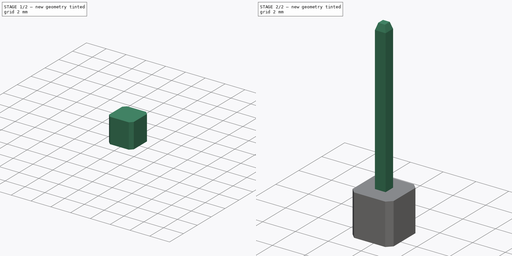
[diagram: build sequence overview — one tinted view per stage of 2, left to right]
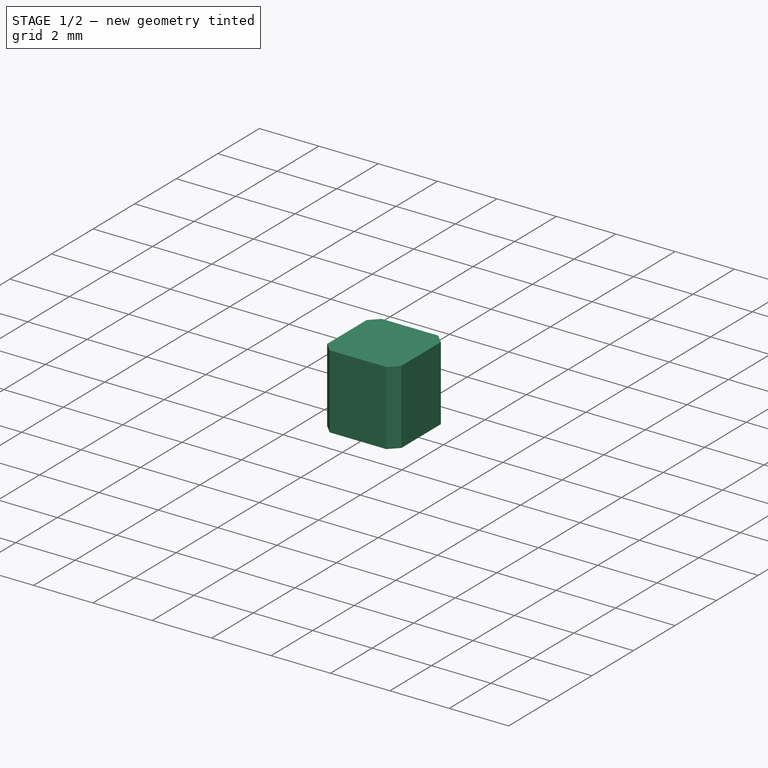
[diagram: stage 1 of 2 — iso view after this stage's code; geometry added in this stage tinted green]
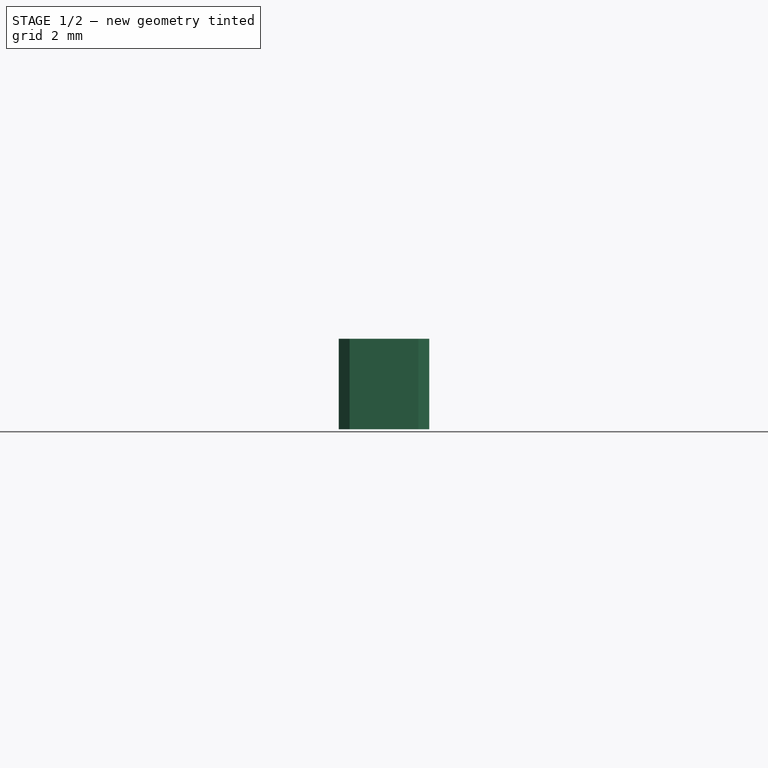
[diagram: stage 1 of 2 — front view after this stage's code; geometry added in this stage tinted green]
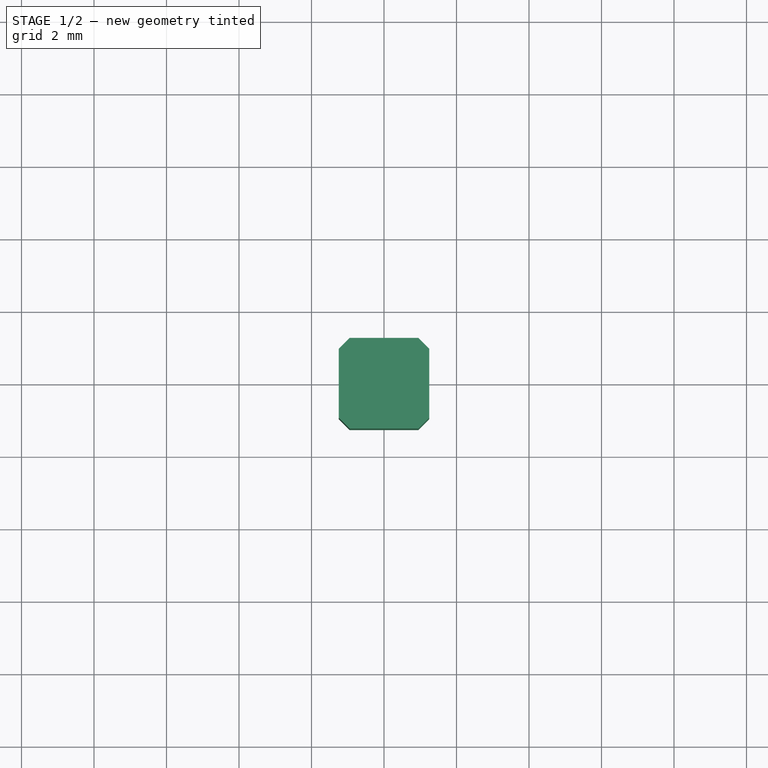
[diagram: stage 1 of 2 — top view after this stage's code; geometry added in this stage tinted green]
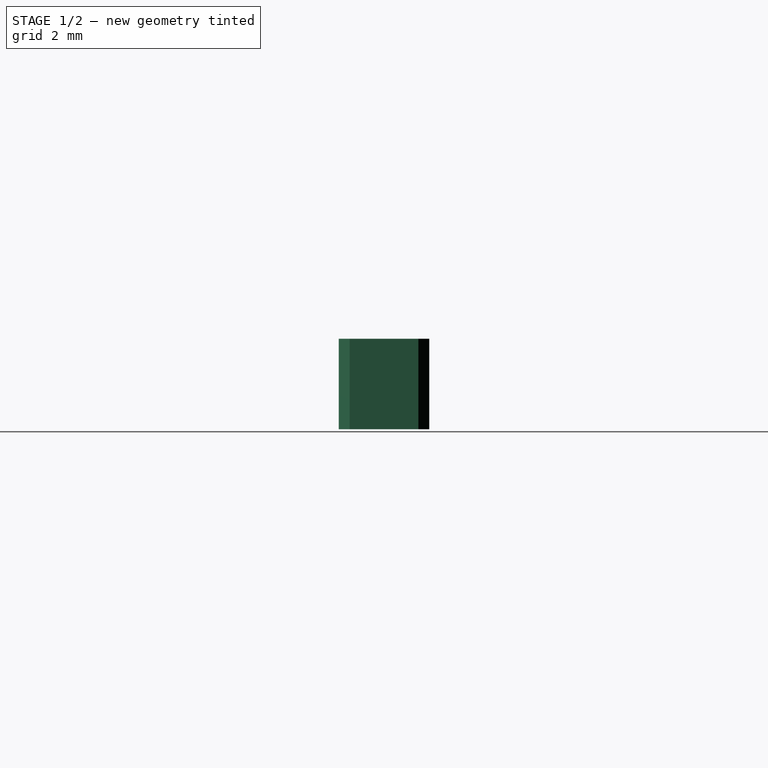
[diagram: stage 1 of 2 — right view after this stage's code; geometry added in this stage tinted green]
FCSTD DOCUMENT  (FreeCAD 0.21R33668 +26 (Git))
Label: PTH_Male_Header_Pin_01x01
License: All rights reserved
LicenseURL: http://en.wikipedia.org/wiki/All_rights_reserved
objects: Sketcher::SketchObject×2, PartDesign::Pad×2, PartDesign::Chamfer×2, PartDesign::Body×2
note: 12 computed .brp shape members not serialized (recipe doc carries the construction recipe); baked Part::Feature solids carry a one-line shape summary decoded from their .brp

FEATURE [PartDesign::Body] Body  label="Pin"
  Group = -> [Sketch,Pad,Chamfer]
  Origin = -> Origin
  Tip = -> Chamfer
FEATURE [Sketcher::SketchObject] Sketch001
  FullyConstrained = true
  MapMode = 5
  Support = -> [XY_Plane001]
  sketch-geometry (5):
    g0: LineSegment StartX=1.25 StartY=-1.25 StartZ=0 EndX=1.25 EndY=1.25 EndZ=0
    g1: LineSegment StartX=1.25 StartY=1.25 StartZ=0 EndX=-1.25 EndY=1.25 EndZ=0
    g2: LineSegment StartX=-1.25 StartY=1.25 StartZ=0 EndX=-1.25 EndY=-1.25 EndZ=0
    g3: LineSegment StartX=-1.25 StartY=-1.25 StartZ=0 EndX=1.25 EndY=-1.25 EndZ=0
    g4: GeomPoint X=0 Y=0 Z=0
  constraints (12):
    c: Coincident(g0,g1)
    c: Coincident(g1,g2)
    c: Coincident(g2,g3)
    c: Coincident(g3,g0)
    c: Horizontal(g1)
    c: Horizontal(g3)
    c: Vertical(g0)
    c: Vertical(g2)
    c: Symmetric(g1,g0,g4)
    c: Coincident(g4,g-1)
    c: Equal(g1,g0)
    c: DistanceX(g1,g1) = 2.5
FEATURE [PartDesign::Pad] Pad001
  Direction = (0,0,1)
  Length = 2.5
  Length2 = 10
  Profile = -> Sketch001
  ReferenceAxis = -> Sketch001 [N_Axis]
  Type = 0
FEATURE [PartDesign::Chamfer] Chamfer001
  Angle = 45
  Base = -> Pad001 [Edge8,Edge1,Edge2,Edge5]
  BaseFeature = -> Pad001
  ChamferType = 0
  FlipDirection = false
  Size = 0.3
  Size2 = 1
  SupportTransform = false
  UseAllEdges = false
FEATURE [PartDesign::Body] Body001  label="Moulding"
  Group = -> [Sketch001,Pad001,Chamfer001]
  Origin = -> Origin001
  Placement = pos=(0,0,3.1) rot=(0,0,1;0rad)
  Tip = -> Chamfer001
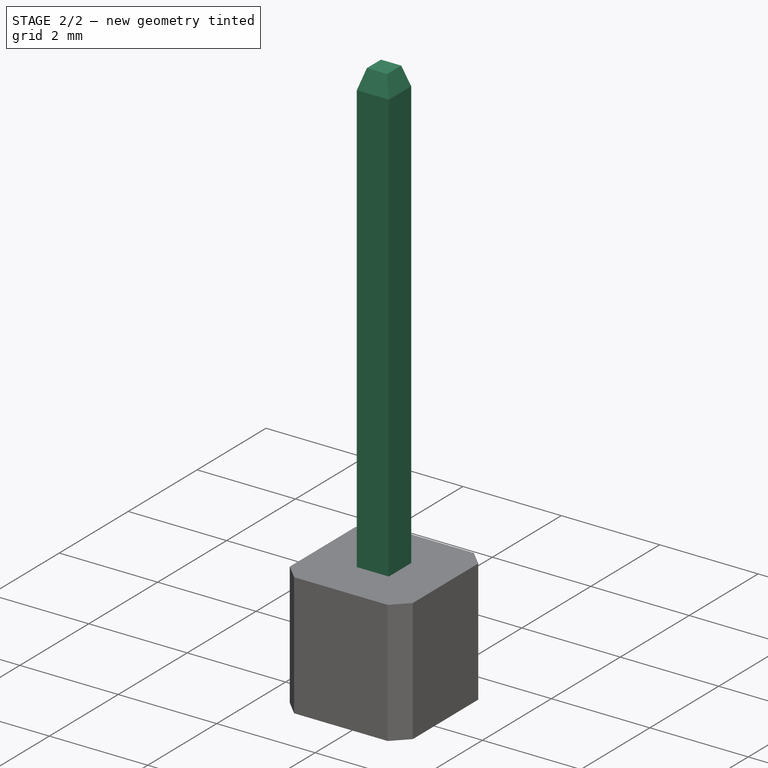
[diagram: stage 2 of 2 — iso view after this stage's code; geometry added in this stage tinted green]
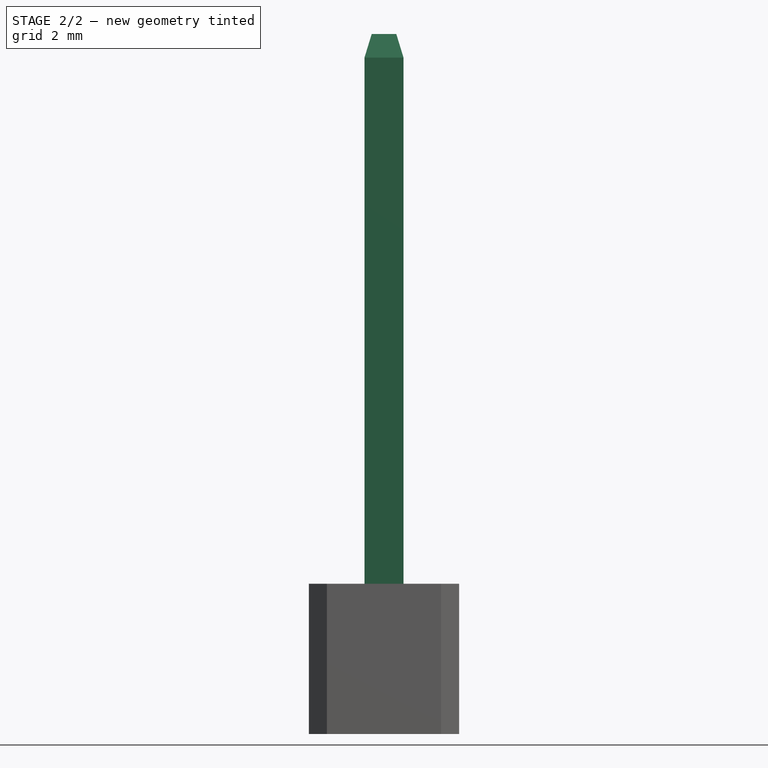
[diagram: stage 2 of 2 — front view after this stage's code; geometry added in this stage tinted green]
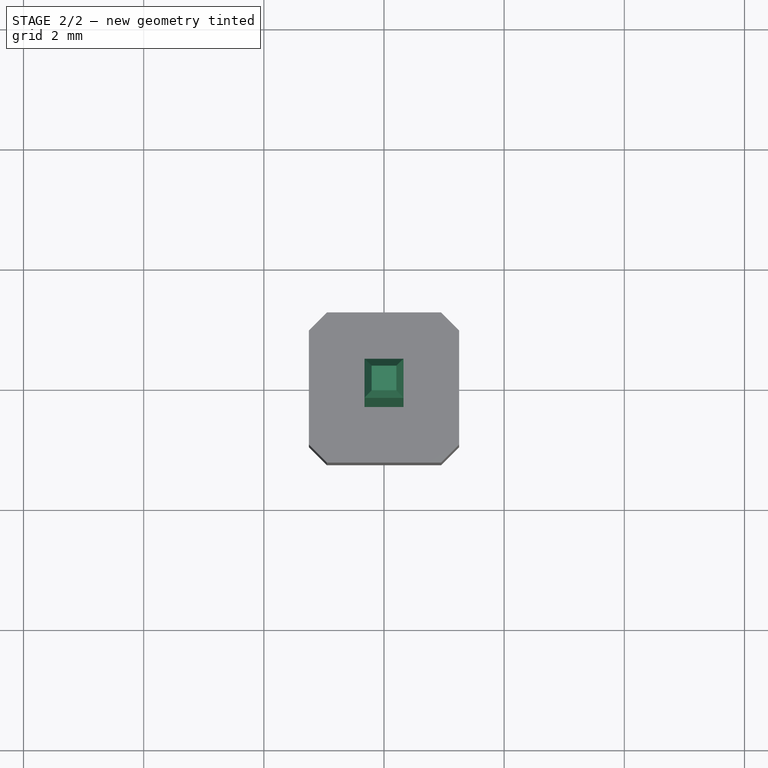
[diagram: stage 2 of 2 — top view after this stage's code; geometry added in this stage tinted green]
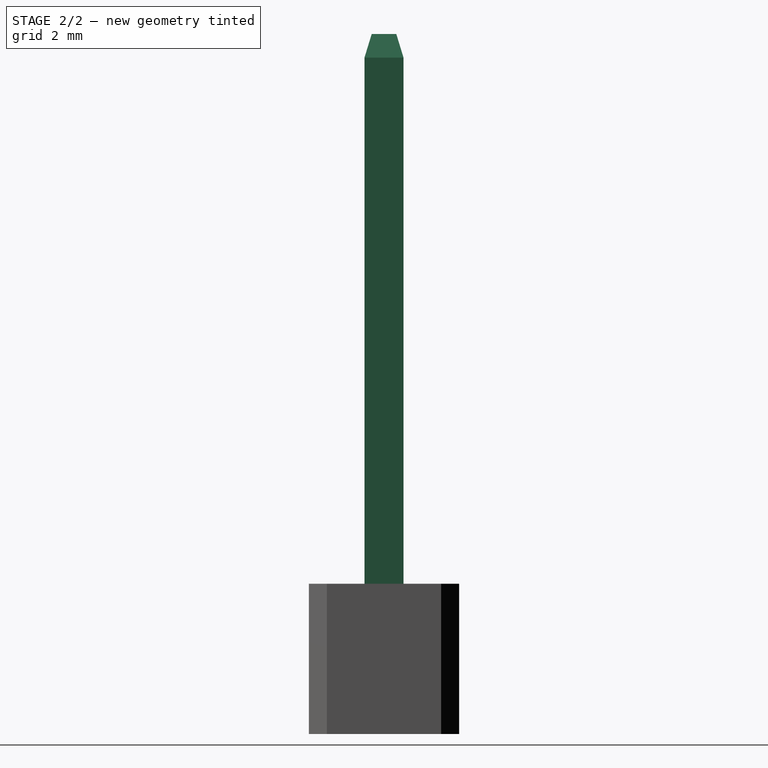
[diagram: stage 2 of 2 — right view after this stage's code; geometry added in this stage tinted green]
FEATURE [Sketcher::SketchObject] Sketch
  FullyConstrained = true
  MapMode = 5
  Support = -> [XY_Plane]
  sketch-geometry (5):
    g0: LineSegment StartX=0.325 StartY=-0.325 StartZ=0 EndX=0.325 EndY=0.325 EndZ=0
    g1: LineSegment StartX=0.325 StartY=0.325 StartZ=0 EndX=-0.325 EndY=0.325 EndZ=0
    g2: LineSegment StartX=-0.325 StartY=0.325 StartZ=0 EndX=-0.325 EndY=-0.325 EndZ=0
    g3: LineSegment StartX=-0.325 StartY=-0.325 StartZ=0 EndX=0.325 EndY=-0.325 EndZ=0
    g4: GeomPoint X=0 Y=2e-16 Z=0
  constraints (12):
    c: Coincident(g0,g1)
    c: Coincident(g1,g2)
    c: Coincident(g2,g3)
    c: Coincident(g3,g0)
    c: Horizontal(g1)
    c: Horizontal(g3)
    c: Vertical(g0)
    c: Vertical(g2)
    c: Symmetric(g1,g0,g4)
    c: Coincident(g4,g-1)
    c: Equal(g1,g0)
    c: DistanceX(g1,g1) = 0.65
FEATURE [PartDesign::Pad] Pad
  Direction = (0,0,1)
  Length = 11.65
  Length2 = 10
  Profile = -> Sketch
  ReferenceAxis = -> Sketch [N_Axis]
  Type = 0
FEATURE [PartDesign::Chamfer] Chamfer
  Angle = 73
  Base = -> Pad [Face6,Face5]
  BaseFeature = -> Pad
  ChamferType = 2
  FlipDirection = false
  Size = 0.12
  Size2 = 1
  SupportTransform = false
  UseAllEdges = false
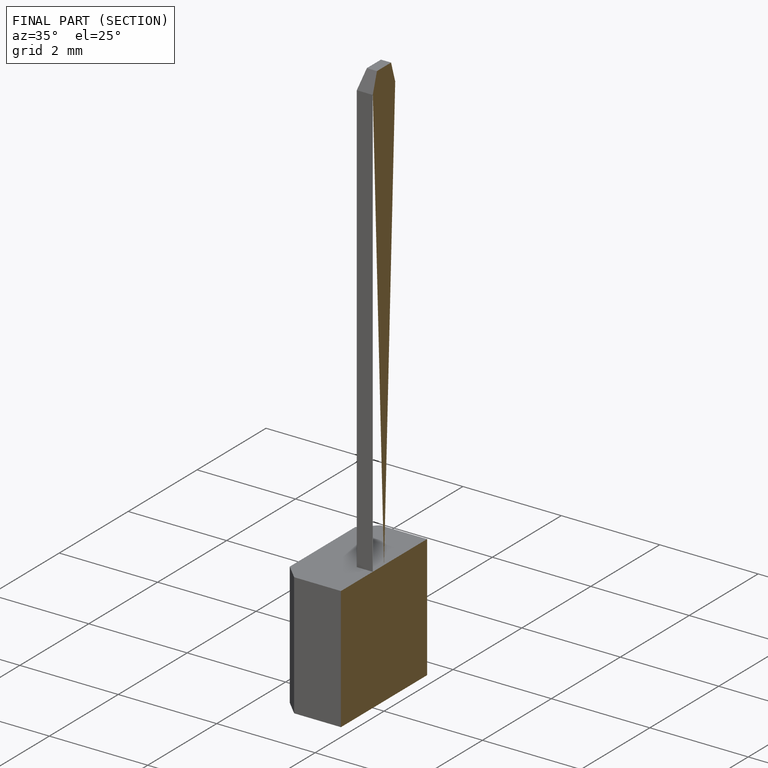
[diagram: finished part — half-section view (interior)]
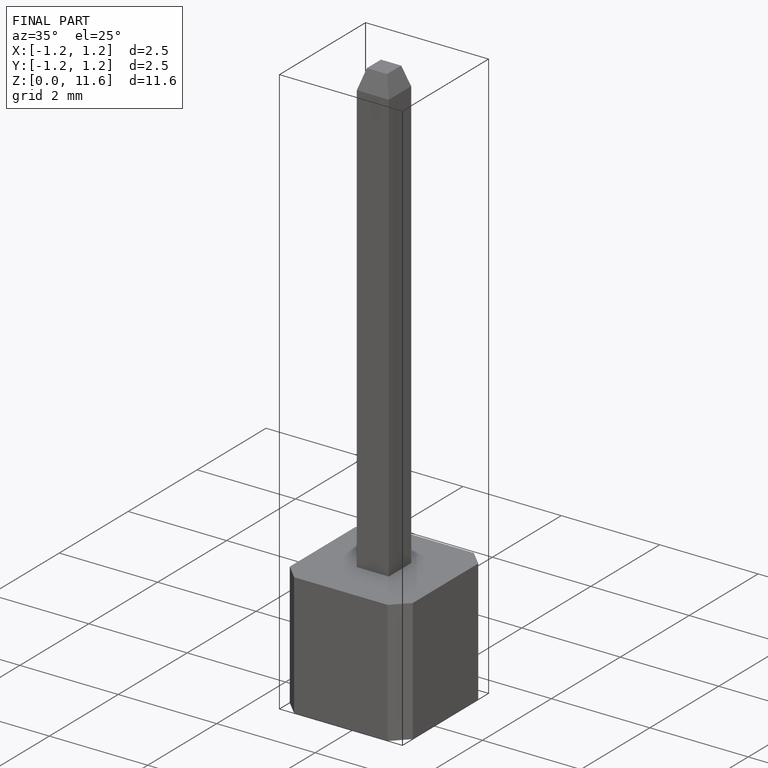
[diagram: finished part — iso view with bounding-box wireframe]
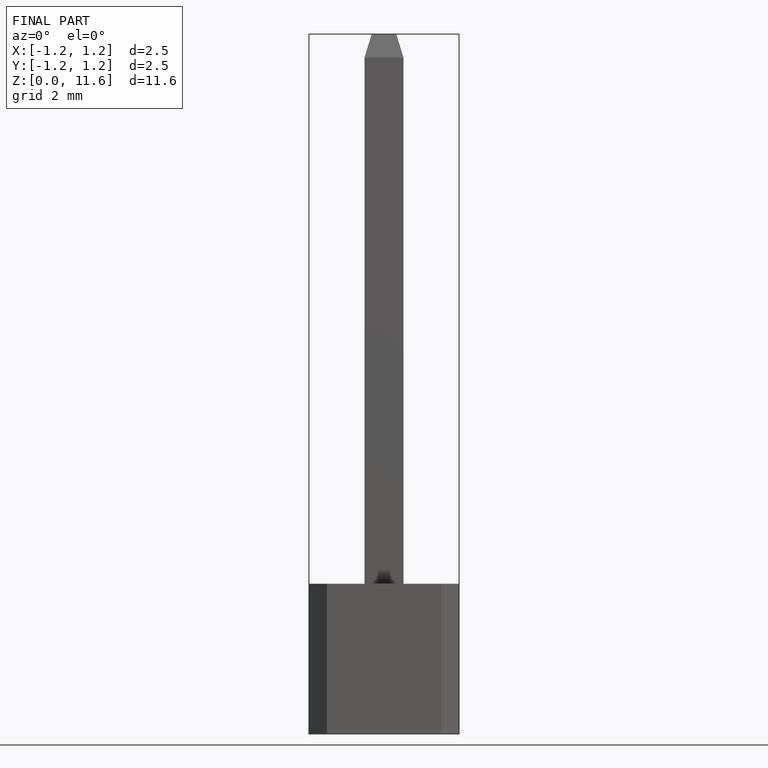
[diagram: finished part — front view with bounding-box wireframe]
